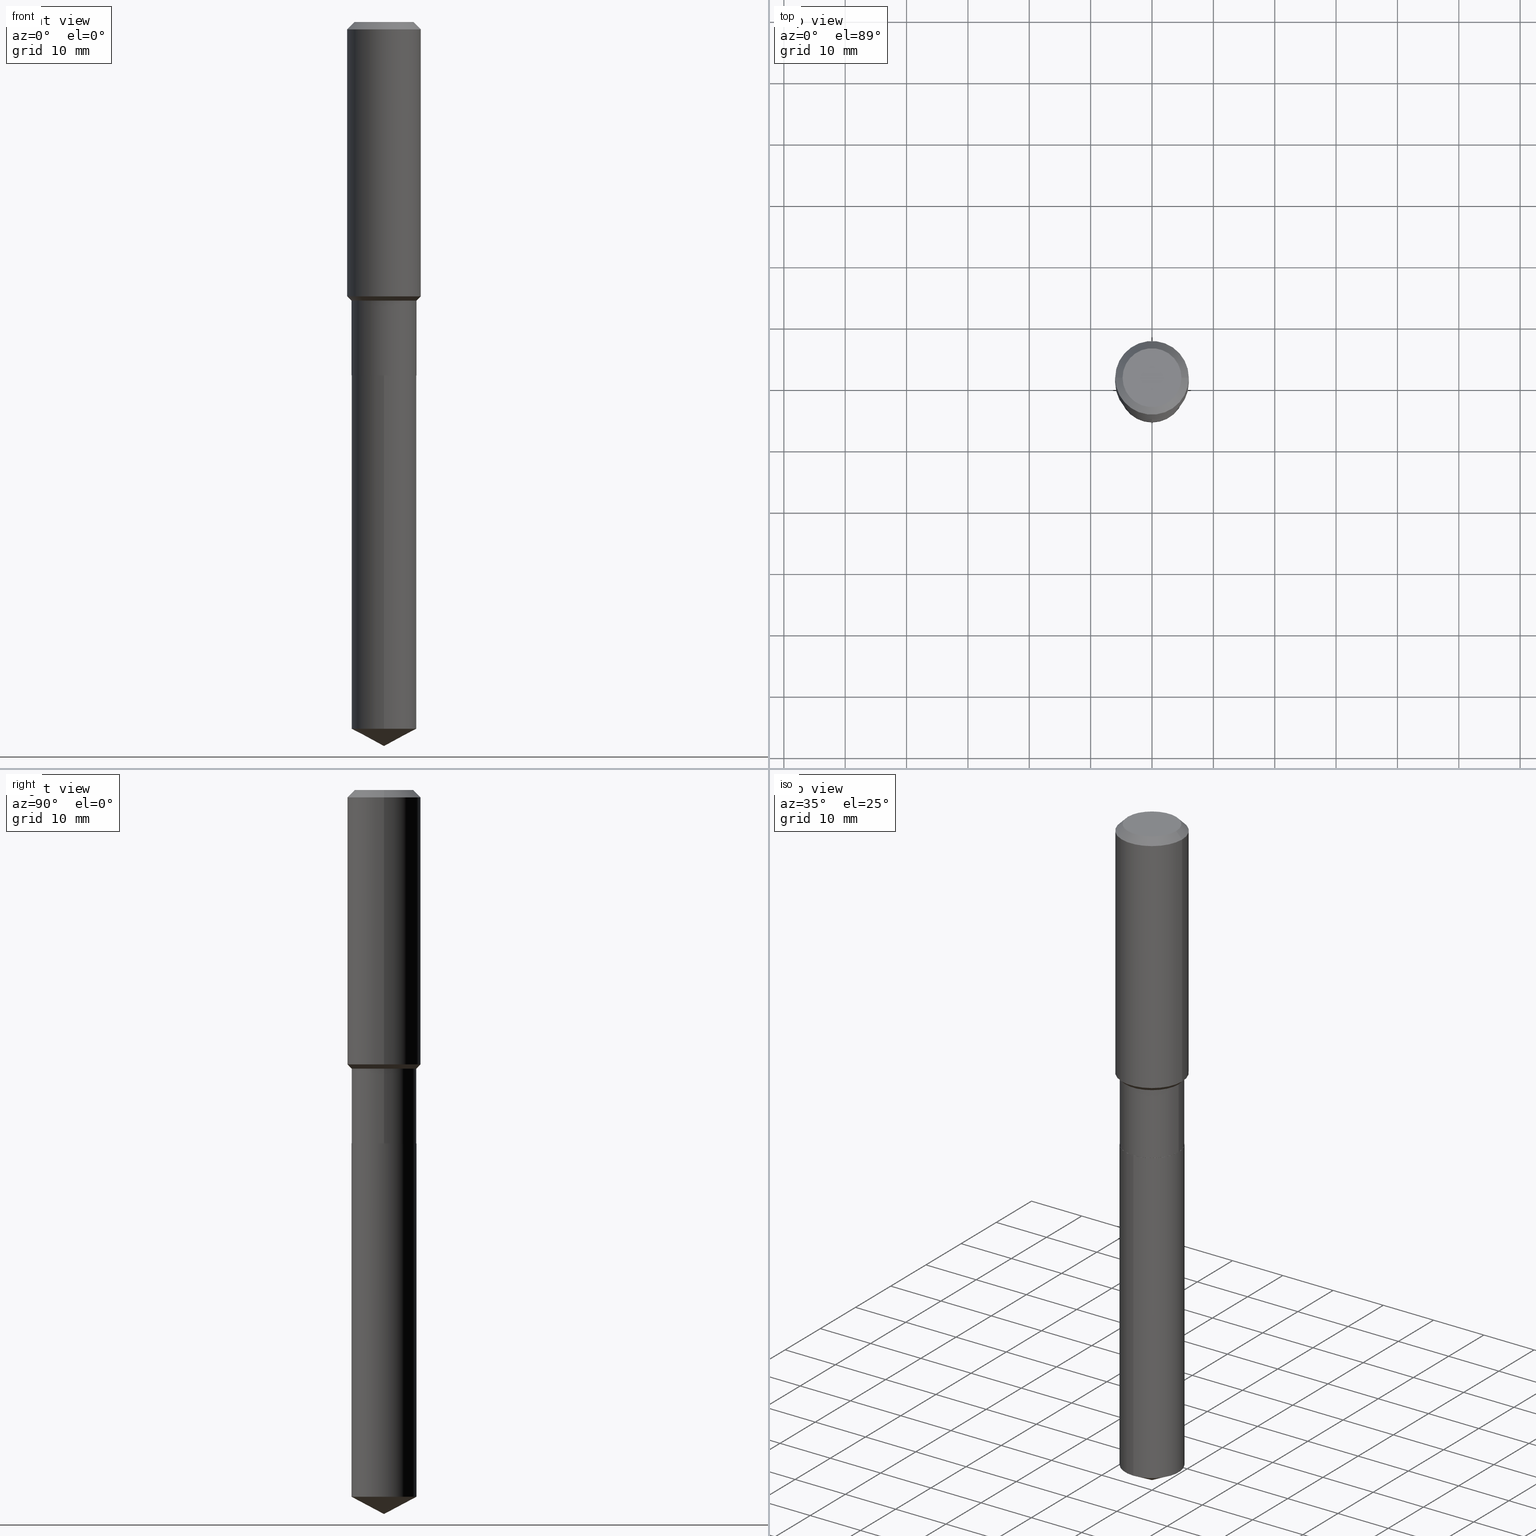
[diagram: canonical four-view strip — front | top / right | iso, engineering-drawing reading convention]
A machine part, canonical four-view strip (front | top / right | iso — engineering-drawing reading convention). The complete STEP part file that produces these views, byte-faithful:
ISO-10303-21;
HEADER;
FILE_DESCRIPTION (( 'STEP AP203' ),
    '1' );
FILE_NAME ('65076.STEP',
    '2024-04-24T20:27:56',
    ( '' ),
    ( '' ),
    'SwSTEP 2.0',
    'SolidWorks 2023',
    '' );
FILE_SCHEMA (( 'CONFIG_CONTROL_DESIGN' ));
ENDSEC;

DATA;
#1 = DIRECTION ( 'NONE',  ( -2.445468806185136597E-29, 3.491481338843145583E-15, 1.000000000000000000 ) ) ;
#2 = PLANE ( 'NONE',  #239 ) ;
#3 = DATE_AND_TIME ( #283, #67 ) ;
#4 = LOCAL_TIME ( 16, 27, 56.00000000000000000, #47 ) ;
#5 = VECTOR ( 'NONE', #154, 39.37007874015748854 ) ;
#6 = CARTESIAN_POINT ( 'NONE',  ( -0.2086499999999999744, 1.482547418163448856E-15, -1.026335806581685820E-29 ) ) ;
#7 = ORIENTED_EDGE ( 'NONE', *, *, #280, .F. ) ;
#8 = PERSON_AND_ORGANIZATION ( #27, #158 ) ;
#9 = DIRECTION ( 'NONE',  ( -2.445468806185136597E-29, 3.491481338843145583E-15, 1.000000000000000000 ) ) ;
#10 = APPROVAL_STATUS ( 'not_yet_approved' ) ;
#11 = CARTESIAN_POINT ( 'NONE',  ( 0.2086500000000000021, -9.372881654124416326E-15, -2.267199999999999438 ) ) ;
#12 = CC_DESIGN_PERSON_AND_ORGANIZATION_ASSIGNMENT ( #462, #88, ( #265 ) ) ;
#13 = DATE_AND_TIME ( #123, #134 ) ;
#14 = CYLINDRICAL_SURFACE ( 'NONE', #373, 0.2086499999999999744 ) ;
#15 = AXIS2_PLACEMENT_3D ( 'NONE', #451, #76, #109 ) ;
#16 = DATE_AND_TIME ( #460, #230 ) ;
#17 = LINE ( 'NONE', #202, #21 ) ;
#18 = CARTESIAN_POINT ( 'NONE',  ( 0.2081500000000000017, -9.371135913454994033E-15, -2.267699999999999605 ) ) ;
#19 = ADVANCED_FACE ( 'NONE', ( #80 ), #2, .F. ) ;
#20 = DIRECTION ( 'NONE',  ( -2.445496192392085927E-29, 3.491442120236068010E-15, 1.000000000000000000 ) ) ;
#21 = VECTOR ( 'NONE', #91, 39.37007874015748143 ) ;
#22 = LINE ( 'NONE', #363, #444 ) ;
#23 = LINE ( 'NONE', #331, #314 ) ;
#24 = EDGE_CURVE ( 'NONE', #313, #456, #272, .T. ) ;
#25 = CARTESIAN_POINT ( 'NONE',  ( 1.108967334134841419E-28, -1.583293691002807105E-14, -4.534758827083832600 ) ) ;
#26 = AXIS2_PLACEMENT_3D ( 'NONE', #52, #206, #424 ) ;
#27 = PERSON ( 'UNSPECIFIED', 'UNSPECIFIED', 'UNSPECIFIED', ('UNSPECIFIED'), ('UNSPECIFIED'), ('UNSPECIFIED') ) ;
#28 = CIRCLE ( 'NONE', #102, 0.2086500000000000021 ) ;
#29 = DIRECTION ( 'NONE',  ( 0.000000000000000000, 0.000000000000000000, 1.000000000000000000 ) ) ;
#30 = EDGE_CURVE ( 'NONE', #113, #210, #476, .T. ) ;
#31 = APPLICATION_PROTOCOL_DEFINITION ( 'international standard', 'config_control_design', 1994, #196 ) ;
#32 = VERTEX_POINT ( 'NONE', #277 ) ;
#33 = CARTESIAN_POINT ( 'NONE',  ( 4.304636466087385309E-29, -6.145880026698644311E-15, -1.760249999999999426 ) ) ;
#34 = ORIENTED_EDGE ( 'NONE', *, *, #227, .T. ) ;
#35 = EDGE_LOOP ( 'NONE', ( #386, #340, #480, #236 ) ) ;
#36 = AXIS2_PLACEMENT_3D ( 'NONE', #361, #170, #353 ) ;
#37 = CONICAL_SURFACE ( 'NONE', #330, 0.2361999999999999933, 0.7853981633974452814 ) ;
#38 = CARTESIAN_POINT ( 'NONE',  ( -9.427742298522546243E-47, 1.346031739168365344E-32, 3.855188123715862256E-18 ) ) ;
#39 = EDGE_CURVE ( 'NONE', #198, #344, #358, .T. ) ;
#40 = CARTESIAN_POINT ( 'NONE',  ( 5.545589611786032874E-29, -7.917632232094598886E-15, -2.267699999999999605 ) ) ;
#41 = ORIENTED_EDGE ( 'NONE', *, *, #362, .F. ) ;
#42 = EDGE_CURVE ( 'NONE', #32, #161, #117, .T. ) ;
#43 = COORDINATED_UNIVERSAL_TIME_OFFSET ( 5, 0, .BEHIND. ) ;
#44 = CYLINDRICAL_SURFACE ( 'NONE', #304, 0.2086499999999999744 ) ;
#45 = CC_DESIGN_SECURITY_CLASSIFICATION ( #265, ( #177 ) ) ;
#46 = CARTESIAN_POINT ( 'NONE',  ( -0.1889600000000000168, 1.401969416799070942E-15, 3.855188123706346622E-18 ) ) ;
#47 = COORDINATED_UNIVERSAL_TIME_OFFSET ( 5, 0, .BEHIND. ) ;
#48 = CYLINDRICAL_SURFACE ( 'NONE', #246, 0.2362000000000001043 ) ;
#49 = PRODUCT_DEFINITION ( 'UNKNOWN', '', #177, #186 ) ;
#50 = ORIENTED_EDGE ( 'NONE', *, *, #319, .T. ) ;
#51 = COORDINATED_UNIVERSAL_TIME_OFFSET ( 5, 0, .BEHIND. ) ;
#52 = CARTESIAN_POINT ( 'NONE',  ( 4.304636466087385309E-29, -6.145880026698644311E-15, -1.760249999999999426 ) ) ;
#53 = FACE_OUTER_BOUND ( 'NONE', #92, .T. ) ;
#54 = AXIS2_PLACEMENT_3D ( 'NONE', #332, #400, #473 ) ;
#55 = APPROVAL ( #207, 'UNSPECIFIED' ) ;
#56 = CARTESIAN_POINT ( 'NONE',  ( 0.2086499999999999466, -7.699065500283012440E-15, -1.787799999999999390 ) ) ;
#57 = EDGE_LOOP ( 'NONE', ( #73, #338, #286, #7 ) ) ;
#58 = CARTESIAN_POINT ( 'NONE',  ( -4.713871149261273121E-47, 6.730158695841826722E-33, 1.927594061857931128E-18 ) ) ;
#59 = CARTESIAN_POINT ( 'NONE',  ( 1.155239464041865506E-30, -1.649375784469511859E-16, -0.04724000000000028177 ) ) ;
#60 = AXIS2_PLACEMENT_3D ( 'NONE', #388, #173, #321 ) ;
#61 = VECTOR ( 'NONE', #334, 39.37007874015748143 ) ;
#62 = EDGE_LOOP ( 'NONE', ( #412, #247 ) ) ;
#63 = LINE ( 'NONE', #56, #298 ) ;
#64 = DIRECTION ( 'NONE',  ( 2.438088387897960049E-29, -3.491481338843145188E-15, -1.000000000000000000 ) ) ;
#65 =( NAMED_UNIT ( * ) PLANE_ANGLE_UNIT ( ) SI_UNIT ( $, .RADIAN. ) );
#66 = CIRCLE ( 'NONE', #36, 0.2086499999999999466 ) ;
#67 = LOCAL_TIME ( 16, 27, 56.00000000000000000, #317 ) ;
#68 = CC_DESIGN_PERSON_AND_ORGANIZATION_ASSIGNMENT ( #423, #250, ( #177 ) ) ;
#69 = DIRECTION ( 'NONE',  ( -2.445496192392085927E-29, 3.491442120236068010E-15, 1.000000000000000000 ) ) ;
#70 = VERTEX_POINT ( 'NONE', #446 ) ;
#71 = DIRECTION ( 'NONE',  ( 1.000000000000000000, -6.982962677686263555E-15, 0.000000000000000000 ) ) ;
#72 = DIRECTION ( 'NONE',  ( 6.982962677686265922E-15, 1.000000000000000000, -3.491442120236068404E-15 ) ) ;
#73 = ORIENTED_EDGE ( 'NONE', *, *, #302, .T. ) ;
#74 = EDGE_LOOP ( 'NONE', ( #233, #385, #50, #433 ) ) ;
#75 = CLOSED_SHELL ( 'NONE', ( #215, #252, #160, #213, #78, #136, #115, #93, #430, #243, #379, #443 ) ) ;
#76 = DIRECTION ( 'NONE',  ( -2.445468806185136597E-29, 3.491481338843145583E-15, 1.000000000000000000 ) ) ;
#77 = EDGE_LOOP ( 'NONE', ( #474, #107, #316, #153 ) ) ;
#78 = ADVANCED_FACE ( 'NONE', ( #244 ), #44, .T. ) ;
#79 = ORIENTED_EDGE ( 'NONE', *, *, #185, .T. ) ;
#80 = FACE_OUTER_BOUND ( 'NONE', #380, .T. ) ;
#81 = CARTESIAN_POINT ( 'NONE',  ( 1.108967334134841419E-28, -1.583293691002807105E-14, -4.534758827083832600 ) ) ;
#82 = VERTEX_POINT ( 'NONE', #411 ) ;
#83 = VECTOR ( 'NONE', #315, 39.37007874015748143 ) ;
#84 = CC_DESIGN_APPROVAL ( #99, ( #177 ) ) ;
#85 = DIRECTION ( 'NONE',  ( 1.000000000000000000, -6.982962677686266711E-15, 4.876176775795935793E-29 ) ) ;
#86 = CALENDAR_DATE ( 2024, 24, 4 ) ;
#87 = CYLINDRICAL_SURFACE ( 'NONE', #452, 0.2362000000000001043 ) ;
#88 = PERSON_AND_ORGANIZATION_ROLE ( 'classification_officer' ) ;
#89 = CARTESIAN_POINT ( 'NONE',  ( 0.2361999999999999933, -1.814313362916447440E-15, -0.04724000000000028177 ) ) ;
#90 = VERTEX_POINT ( 'NONE', #324 ) ;
#91 = DIRECTION ( 'NONE',  ( -0.7071067811865453523, 2.468850131082234184E-15, -0.7071067811865496822 ) ) ;
#92 = EDGE_LOOP ( 'NONE', ( #103, #459, #41, #288 ) ) ;
#93 = ADVANCED_FACE ( 'NONE', ( #122 ), #87, .T. ) ;
#94 = PLANE ( 'NONE',  #54 ) ;
#95 = ORIENTED_EDGE ( 'NONE', *, *, #365, .T. ) ;
#96 = ADVANCED_FACE ( 'NONE', ( #251 ), #282, .T. ) ;
#97 = DIRECTION ( 'NONE',  ( -1.000000000000000000, 6.982962677686265922E-15, -4.876176775795935793E-29 ) ) ;
#98 = CARTESIAN_POINT ( 'NONE',  ( 1.136104166099591155E-28, -1.622019265798070157E-14, -4.645699999999999719 ) ) ;
#99 = APPROVAL ( #10, 'UNSPECIFIED' ) ;
#100 = ORIENTED_EDGE ( 'NONE', *, *, #121, .T. ) ;
#101 = AXIS2_PLACEMENT_3D ( 'NONE', #214, #397, #318 ) ;
#102 = AXIS2_PLACEMENT_3D ( 'NONE', #25, #218, #139 ) ;
#103 = ORIENTED_EDGE ( 'NONE', *, *, #484, .T. ) ;
#104 = DIRECTION ( 'NONE',  ( -2.445496192392085927E-29, 3.491442120236068010E-15, 1.000000000000000000 ) ) ;
#105 = CARTESIAN_POINT ( 'NONE',  ( 1.482547418163559691E-15, 0.2086499999999842092, -4.534758827083833488 ) ) ;
#106 =( LENGTH_UNIT ( ) NAMED_UNIT ( * ) SI_UNIT ( $, .METRE. ) );
#107 = ORIENTED_EDGE ( 'NONE', *, *, #201, .T. ) ;
#108 = CIRCLE ( 'NONE', #15, 0.2081500000000000017 ) ;
#109 = DIRECTION ( 'NONE',  ( 1.000000000000000000, -6.982962677686263555E-15, 0.000000000000000000 ) ) ;
#110 = DIRECTION ( 'NONE',  ( -2.445468806185136597E-29, 3.491481338843145583E-15, 1.000000000000000000 ) ) ;
#111 =( CONVERSION_BASED_UNIT ( 'INCH', #489 ) LENGTH_UNIT ( ) NAMED_UNIT ( #399 ) );
#112 = DIRECTION ( 'NONE',  ( -2.445468806185136597E-29, 3.491481338843145583E-15, 1.000000000000000000 ) ) ;
#113 = VERTEX_POINT ( 'NONE', #46 ) ;
#114 = PERSON_AND_ORGANIZATION ( #27, #158 ) ;
#115 = ADVANCED_FACE ( 'NONE', ( #391 ), #157, .T. ) ;
#116 = ORIENTED_EDGE ( 'NONE', *, *, #365, .F. ) ;
#117 = CIRCLE ( 'NONE', #291, 0.2361999999999999933 ) ;
#118 = VECTOR ( 'NONE', #377, 39.37007874015748143 ) ;
#119 = LINE ( 'NONE', #311, #118 ) ;
#120 = DIRECTION ( 'NONE',  ( 2.445496192392085367E-29, -3.491442120236068404E-15, -1.000000000000000000 ) ) ;
#121 = EDGE_CURVE ( 'NONE', #113, #32, #17, .T. ) ;
#122 = FACE_OUTER_BOUND ( 'NONE', #74, .T. ) ;
#123 = CALENDAR_DATE ( 2024, 24, 4 ) ;
#124 = DIRECTION ( 'NONE',  ( -2.445468806185136597E-29, 3.491481338843145583E-15, 1.000000000000000000 ) ) ;
#125 = PERSON_AND_ORGANIZATION_ROLE ( 'design_supplier' ) ;
#126 = VECTOR ( 'NONE', #467, 39.37007874015748143 ) ;
#127 = DIRECTION ( 'NONE',  ( -2.445468806185136597E-29, 3.491481338843145583E-15, 1.000000000000000000 ) ) ;
#128 = DIRECTION ( 'NONE',  ( -2.445468806185136597E-29, 3.491481338843145583E-15, 1.000000000000000000 ) ) ;
#129 = DIRECTION ( 'NONE',  ( 1.000000000000000000, -6.982962677686266711E-15, 4.876176775795935793E-29 ) ) ;
#130 = ORIENTED_EDGE ( 'NONE', *, *, #121, .F. ) ;
#131 = MANIFOLD_SOLID_BREP ( 'Body-Move/Copy2[2]', #75 ) ;
#132 = CIRCLE ( 'NONE', #442, 0.1889600000000000168 ) ;
#133 = CARTESIAN_POINT ( 'NONE',  ( 4.372009131697785890E-29, -6.242070337583773496E-15, -1.787799999999999390 ) ) ;
#134 = LOCAL_TIME ( 16, 27, 56.00000000000000000, #51 ) ;
#135 = MANIFOLD_SOLID_BREP ( 'Body-Move/Copy2[1]', #229 ) ;
#136 = ADVANCED_FACE ( 'NONE', ( #464 ), #14, .T. ) ;
#137 = CARTESIAN_POINT ( 'NONE',  ( 0.2361999999999999933, -1.785387205520586782E-15, -0.04724000000000028177 ) ) ;
#138 = EDGE_CURVE ( 'NONE', #249, #32, #245, .T. ) ;
#139 = DIRECTION ( 'NONE',  ( -6.982962677686265922E-15, -1.000000000000000000, 2.618593811324479633E-15 ) ) ;
#140 = CARTESIAN_POINT ( 'NONE',  ( 5.545589611786032874E-29, -7.917632232094598886E-15, -2.267699999999999605 ) ) ;
#141 = CIRCLE ( 'NONE', #359, 0.2086499999999999466 ) ;
#142 = CARTESIAN_POINT ( 'NONE',  ( 0.2081500000000000017, -9.371135913454994033E-15, -2.267699999999999605 ) ) ;
#143 = EDGE_CURVE ( 'NONE', #249, #90, #257, .T. ) ;
#144 =( NAMED_UNIT ( * ) SI_UNIT ( $, .STERADIAN. ) SOLID_ANGLE_UNIT ( ) );
#145 = VERTEX_POINT ( 'NONE', #348 ) ;
#146 = DIRECTION ( 'NONE',  ( 1.000000000000000000, -6.982962677686265922E-15, 0.000000000000000000 ) ) ;
#147 = CARTESIAN_POINT ( 'NONE',  ( 5.544366877382941194E-29, -7.915886491425178171E-15, -2.267199999999999438 ) ) ;
#148 = VECTOR ( 'NONE', #294, 39.37007874015748143 ) ;
#149 = FACE_OUTER_BOUND ( 'NONE', #35, .T. ) ;
#150 = ORIENTED_EDGE ( 'NONE', *, *, #30, .T. ) ;
#151 = ORIENTED_EDGE ( 'NONE', *, *, #333, .T. ) ;
#152 = PRODUCT_RELATED_PRODUCT_CATEGORY ( 'detail', '', ( #228 ) ) ;
#153 = ORIENTED_EDGE ( 'NONE', *, *, #387, .F. ) ;
#154 = DIRECTION ( 'NONE',  ( 6.273719981627764499E-15, 0.8829475928589295419, 0.4694715627858856433 ) ) ;
#155 = EDGE_LOOP ( 'NONE', ( #150, #79 ) ) ;
#156 = ORIENTED_EDGE ( 'NONE', *, *, #438, .T. ) ;
#157 = CONICAL_SURFACE ( 'NONE', #389, 0.2086499999999999466, 0.7853981633974513876 ) ;
#158 = ORGANIZATION ( 'UNSPECIFIED', 'UNSPECIFIED', '' ) ;
#159 = DIRECTION ( 'NONE',  ( -2.445468806185136597E-29, 3.491481338843145583E-15, 1.000000000000000000 ) ) ;
#160 = ADVANCED_FACE ( 'NONE', ( #53 ), #48, .T. ) ;
#161 = VERTEX_POINT ( 'NONE', #89 ) ;
#162 = CALENDAR_DATE ( 2024, 24, 4 ) ;
#163 = DIRECTION ( 'NONE',  ( -2.445496192392085927E-29, 3.491442120236068010E-15, 1.000000000000000000 ) ) ;
#164 = DATE_AND_TIME ( #162, #305 ) ;
#165 = CARTESIAN_POINT ( 'NONE',  ( 0.000000000000000000, 0.000000000000000000, 0.000000000000000000 ) ) ;
#166 = ORIENTED_EDGE ( 'NONE', *, *, #235, .F. ) ;
#167 = AXIS2_PLACEMENT_3D ( 'NONE', #81, #163, #281 ) ;
#168 = SHAPE_DEFINITION_REPRESENTATION ( #262, #209 ) ;
#169 = AXIS2_PLACEMENT_3D ( 'NONE', #174, #327, #293 ) ;
#170 = DIRECTION ( 'NONE',  ( -2.445468806185136597E-29, 3.491481338843145583E-15, 1.000000000000000000 ) ) ;
#171 = APPLICATION_CONTEXT ( 'configuration controlled 3d designs of mechanical parts and assemblies' ) ;
#172 = EDGE_CURVE ( 'NONE', #275, #82, #66, .T. ) ;
#173 = DIRECTION ( 'NONE',  ( -2.445468806185136597E-29, 3.491481338843145583E-15, 1.000000000000000000 ) ) ;
#174 = CARTESIAN_POINT ( 'NONE',  ( 1.155239464041865506E-30, -1.649375784469511859E-16, -0.04724000000000028177 ) ) ;
#175 = VECTOR ( 'NONE', #465, 39.37007874015748143 ) ;
#176 = DIRECTION ( 'NONE',  ( -2.445468806185136597E-29, 3.491481338843145583E-15, 1.000000000000000000 ) ) ;
#177 = PRODUCT_DEFINITION_FORMATION_WITH_SPECIFIED_SOURCE ( 'ANY', '', #228, .NOT_KNOWN. ) ;
#178 = CARTESIAN_POINT ( 'NONE',  ( -1.456995162699128700E-15, -0.2086500000000158506, -4.534758827083831711 ) ) ;
#179 = CARTESIAN_POINT ( 'NONE',  ( -0.2086499999999999466, -5.596430996341026386E-15, -1.787799999999999390 ) ) ;
#180 = ORIENTED_EDGE ( 'NONE', *, *, #413, .T. ) ;
#181 = FACE_OUTER_BOUND ( 'NONE', #472, .T. ) ;
#182 = ORIENTED_EDGE ( 'NONE', *, *, #403, .F. ) ;
#183 = CONICAL_SURFACE ( 'NONE', #258, 0.2081500000000000017, 0.7853981633975507526 ) ;
#184 = MECHANICAL_CONTEXT ( 'NONE', #171, 'mechanical' ) ;
#185 = EDGE_CURVE ( 'NONE', #210, #113, #132, .T. ) ;
#186 = DESIGN_CONTEXT ( 'detailed design', #196, 'design' ) ;
#187 = DIRECTION ( 'NONE',  ( 1.000000000000000000, -6.982962677686266711E-15, 0.000000000000000000 ) ) ;
#188 = ORIENTED_EDGE ( 'NONE', *, *, #362, .T. ) ;
#189 = CARTESIAN_POINT ( 'NONE',  ( -1.456995162699183723E-15, -0.2086500000000079402, -2.267699999999998717 ) ) ;
#190 = AXIS2_PLACEMENT_3D ( 'NONE', #256, #127, #289 ) ;
#191 = ORIENTED_EDGE ( 'NONE', *, *, #172, .F. ) ;
#192 = CIRCLE ( 'NONE', #477, 0.2362000000000002153 ) ;
#193 = EDGE_CURVE ( 'NONE', #70, #342, #404, .T. ) ;
#194 = EDGE_LOOP ( 'NONE', ( #401, #384, #487 ) ) ;
#195 = DIRECTION ( 'NONE',  ( -2.445468806185136597E-29, 3.491481338843145583E-15, 1.000000000000000000 ) ) ;
#196 = APPLICATION_CONTEXT ( 'configuration controlled 3d designs of mechanical parts and assemblies' ) ;
#197 = CYLINDRICAL_SURFACE ( 'NONE', #436, 0.2086500000000000021 ) ;
#198 = VERTEX_POINT ( 'NONE', #11 ) ;
#199 = ORIENTED_EDGE ( 'NONE', *, *, #42, .T. ) ;
#200 = PERSON_AND_ORGANIZATION ( #27, #158 ) ;
#201 = EDGE_CURVE ( 'NONE', #344, #275, #259, .T. ) ;
#202 = CARTESIAN_POINT ( 'NONE',  ( -0.2361999999999999933, 1.484438206022545019E-15, -0.04724000000000028177 ) ) ;
#203 = AXIS2_PLACEMENT_3D ( 'NONE', #38, #195, #449 ) ;
#204 = AXIS2_PLACEMENT_3D ( 'NONE', #260, #20, #221 ) ;
#205 = PERSON_AND_ORGANIZATION_ROLE ( 'creator' ) ;
#206 = DIRECTION ( 'NONE',  ( -2.445468806185136597E-29, 3.491481338843145583E-15, 1.000000000000000000 ) ) ;
#207 = APPROVAL_STATUS ( 'not_yet_approved' ) ;
#208 = CARTESIAN_POINT ( 'NONE',  ( 4.372009131697785890E-29, -6.242070337583773496E-15, -1.787799999999999390 ) ) ;
#209 = ADVANCED_BREP_SHAPE_REPRESENTATION ( '65076', ( #135, #131, #485 ), #390 ) ;
#210 = VERTEX_POINT ( 'NONE', #425 ) ;
#211 = DATE_TIME_ROLE ( 'creation_date' ) ;
#212 = DIRECTION ( 'NONE',  ( -2.445468806185136597E-29, 3.491481338843145583E-15, 1.000000000000000000 ) ) ;
#213 = ADVANCED_FACE ( 'NONE', ( #420 ), #220, .T. ) ;
#214 = CARTESIAN_POINT ( 'NONE',  ( -8.491839809593731106E-28, 1.212380695963803937E-13, 34.72437874015748349 ) ) ;
#215 = ADVANCED_FACE ( 'NONE', ( #461 ), #263, .T. ) ;
#216 = DIRECTION ( 'NONE',  ( -0.7071067811866199593, 7.493145998870616062E-15, 0.7071067811864750752 ) ) ;
#217 = EDGE_LOOP ( 'NONE', ( #343, #351, #224, #372 ) ) ;
#218 = DIRECTION ( 'NONE',  ( -2.445496192392085927E-29, 3.491442120236068010E-15, 1.000000000000000000 ) ) ;
#219 = CC_DESIGN_DATE_AND_TIME_ASSIGNMENT ( #352, #457, ( #265 ) ) ;
#220 = CONICAL_SURFACE ( 'NONE', #60, 0.2086499999999999466, 0.7853981633974513876 ) ;
#221 = DIRECTION ( 'NONE',  ( -6.982962677686265922E-15, -1.000000000000000000, 3.541896320645560869E-15 ) ) ;
#222 = CONICAL_SURFACE ( 'NONE', #240, 0.2361999999999999933, 0.7853981633974452814 ) ;
#223 = LINE ( 'NONE', #264, #453 ) ;
#224 = ORIENTED_EDGE ( 'NONE', *, *, #280, .T. ) ;
#225 = ORIENTED_EDGE ( 'NONE', *, *, #24, .T. ) ;
#226 = FACE_OUTER_BOUND ( 'NONE', #434, .T. ) ;
#227 = EDGE_CURVE ( 'NONE', #145, #456, #341, .T. ) ;
#228 = PRODUCT ( '65076', '65076', '', ( #184 ) ) ;
#229 = CLOSED_SHELL ( 'NONE', ( #284, #96, #255, #427, #19 ) ) ;
#230 = LOCAL_TIME ( 16, 27, 56.00000000000000000, #325 ) ;
#231 = APPROVAL_PERSON_ORGANIZATION ( #200, #99, #320 ) ;
#232 = CARTESIAN_POINT ( 'NONE',  ( 5.544366877382941194E-29, -7.915886491425178171E-15, -2.267199999999999438 ) ) ;
#233 = ORIENTED_EDGE ( 'NONE', *, *, #138, .F. ) ;
#234 = APPLICATION_PROTOCOL_DEFINITION ( 'international standard', 'config_control_design', 1994, #171 ) ;
#235 = EDGE_CURVE ( 'NONE', #347, #313, #382, .T. ) ;
#236 = ORIENTED_EDGE ( 'NONE', *, *, #438, .F. ) ;
#237 = DIRECTION ( 'NONE',  ( -1.000000000000000000, 6.982962677686266711E-15, 0.000000000000000000 ) ) ;
#238 = DIRECTION ( 'NONE',  ( 1.000000000000000000, -6.982962677686265922E-15, 0.000000000000000000 ) ) ;
#239 = AXIS2_PLACEMENT_3D ( 'NONE', #454, #120, #72 ) ;
#240 = AXIS2_PLACEMENT_3D ( 'NONE', #337, #408, #237 ) ;
#241 = FACE_OUTER_BOUND ( 'NONE', #426, .T. ) ;
#242 = EDGE_LOOP ( 'NONE', ( #414, #369, #310, #396 ) ) ;
#243 = ADVANCED_FACE ( 'NONE', ( #407 ), #266, .F. ) ;
#244 = FACE_OUTER_BOUND ( 'NONE', #77, .T. ) ;
#245 = LINE ( 'NONE', #285, #175 ) ;
#246 = AXIS2_PLACEMENT_3D ( 'NONE', #355, #212, #129 ) ;
#247 = ORIENTED_EDGE ( 'NONE', *, *, #193, .F. ) ;
#248 = CIRCLE ( 'NONE', #422, 0.2086500000000000021 ) ;
#249 = VERTEX_POINT ( 'NONE', #437 ) ;
#250 = PERSON_AND_ORGANIZATION_ROLE ( 'creator' ) ;
#251 = FACE_OUTER_BOUND ( 'NONE', #194, .T. ) ;
#252 = ADVANCED_FACE ( 'NONE', ( #226 ), #37, .T. ) ;
#253 = APPROVAL_ROLE ( '' ) ;
#254 = DIRECTION ( 'NONE',  ( -2.445468806185136597E-29, 3.491481338843145583E-15, 1.000000000000000000 ) ) ;
#255 = ADVANCED_FACE ( 'NONE', ( #364 ), #269, .T. ) ;
#256 = CARTESIAN_POINT ( 'NONE',  ( 5.545589611786032874E-29, -7.917632232094598886E-15, -2.267699999999999605 ) ) ;
#257 = CIRCLE ( 'NONE', #26, 0.2362000000000002153 ) ;
#258 = AXIS2_PLACEMENT_3D ( 'NONE', #381, #410, #71 ) ;
#259 = LINE ( 'NONE', #6, #83 ) ;
#260 = CARTESIAN_POINT ( 'NONE',  ( -8.491839809593731106E-28, 1.212380695963803937E-13, 34.72437874015748349 ) ) ;
#261 = LINE ( 'NONE', #18, #148 ) ;
#262 = PRODUCT_DEFINITION_SHAPE ( 'NONE', 'NONE',  #49 ) ;
#263 = CONICAL_SURFACE ( 'NONE', #190, 0.2081500000000000017, 0.7853981633975507526 ) ;
#264 = CARTESIAN_POINT ( 'NONE',  ( -0.2086499999999999466, -4.759522919420324443E-15, -1.787799999999999390 ) ) ;
#265 = SECURITY_CLASSIFICATION ( '', '', #354 ) ;
#266 = PLANE ( 'NONE',  #416 ) ;
#267 = DIRECTION ( 'NONE',  ( -1.000000000000000000, 6.982962677686266711E-15, 0.000000000000000000 ) ) ;
#268 = DIRECTION ( 'NONE',  ( -6.982962677686265922E-15, -1.000000000000000000, 3.927890716986719253E-15 ) ) ;
#269 = CONICAL_SURFACE ( 'NONE', #204, 74.04434902938353957, 1.082104136236486491 ) ;
#270 = ORIENTED_EDGE ( 'NONE', *, *, #387, .T. ) ;
#271 = EDGE_CURVE ( 'NONE', #313, #347, #28, .T. ) ;
#272 = LINE ( 'NONE', #189, #329 ) ;
#273 = ORIENTED_EDGE ( 'NONE', *, *, #185, .F. ) ;
#274 = CARTESIAN_POINT ( 'NONE',  ( 5.545589611786032874E-29, -7.917632232094598886E-15, -2.267699999999999605 ) ) ;
#275 = VERTEX_POINT ( 'NONE', #179 ) ;
#276 = APPROVAL_DATE_TIME ( #164, #447 ) ;
#277 = CARTESIAN_POINT ( 'NONE',  ( -0.2361999999999999933, -1.477106860707440035E-15, -0.04724000000000028177 ) ) ;
#278 = CC_DESIGN_PERSON_AND_ORGANIZATION_ASSIGNMENT ( #8, #205, ( #49 ) ) ;
#279 = DIRECTION ( 'NONE',  ( -2.445496192392085927E-29, 3.491442120236068010E-15, 1.000000000000000000 ) ) ;
#280 = EDGE_CURVE ( 'NONE', #82, #90, #63, .T. ) ;
#281 = DIRECTION ( 'NONE',  ( -6.982962677686265922E-15, -1.000000000000000000, 2.618593811324479633E-15 ) ) ;
#282 = CONICAL_SURFACE ( 'NONE', #101, 74.04434902938353957, 1.082104136236486491 ) ;
#283 = CALENDAR_DATE ( 2024, 24, 4 ) ;
#284 = ADVANCED_FACE ( 'NONE', ( #181 ), #335, .T. ) ;
#285 = CARTESIAN_POINT ( 'NONE',  ( -0.2362000000000001043, 1.678301941865357380E-15, -1.161852468318209317E-29 ) ) ;
#286 = ORIENTED_EDGE ( 'NONE', *, *, #484, .F. ) ;
#287 = DIRECTION ( 'NONE',  ( 1.000000000000000000, -6.982962677686263555E-15, 0.000000000000000000 ) ) ;
#288 = ORIENTED_EDGE ( 'NONE', *, *, #319, .F. ) ;
#289 = DIRECTION ( 'NONE',  ( 1.000000000000000000, -6.982962677686263555E-15, 0.000000000000000000 ) ) ;
#290 = ORIENTED_EDGE ( 'NONE', *, *, #333, .F. ) ;
#291 = AXIS2_PLACEMENT_3D ( 'NONE', #450, #112, #490 ) ;
#292 = CIRCLE ( 'NONE', #336, 0.2086500000000000021 ) ;
#293 = DIRECTION ( 'NONE',  ( 1.000000000000000000, -6.982962677686266711E-15, 0.000000000000000000 ) ) ;
#294 = DIRECTION ( 'NONE',  ( 0.7071067811866199593, -2.468850131083015945E-15, 0.7071067811864750752 ) ) ;
#295 = LINE ( 'NONE', #368, #61 ) ;
#296 = AXIS2_PLACEMENT_3D ( 'NONE', #147, #419, #238 ) ;
#297 = CARTESIAN_POINT ( 'NONE',  ( -0.2086500000000000021, -5.596430996341025597E-15, -2.267199999999999438 ) ) ;
#298 = VECTOR ( 'NONE', #300, 39.37007874015748143 ) ;
#299 = CC_DESIGN_PERSON_AND_ORGANIZATION_ASSIGNMENT ( #114, #440, ( #228 ) ) ;
#300 = DIRECTION ( 'NONE',  ( 0.7071067811865496822, -2.468850131082279149E-15, 0.7071067811865453523 ) ) ;
#301 = ORIENTED_EDGE ( 'NONE', *, *, #227, .F. ) ;
#302 = EDGE_CURVE ( 'NONE', #82, #275, #141, .T. ) ;
#303 = APPROVAL_ROLE ( '' ) ;
#304 = AXIS2_PLACEMENT_3D ( 'NONE', #375, #110, #441 ) ;
#305 = LOCAL_TIME ( 16, 27, 56.00000000000000000, #43 ) ;
#306 = ORIENTED_EDGE ( 'NONE', *, *, #271, .T. ) ;
#307 = CARTESIAN_POINT ( 'NONE',  ( 1.136104275014822165E-28, -1.622019265798070157E-14, -4.645699999999999719 ) ) ;
#308 = EDGE_LOOP ( 'NONE', ( #378, #180, #166 ) ) ;
#309 = CARTESIAN_POINT ( 'NONE',  ( 0.000000000000000000, 0.000000000000000000, 0.000000000000000000 ) ) ;
#310 = ORIENTED_EDGE ( 'NONE', *, *, #39, .F. ) ;
#311 = CARTESIAN_POINT ( 'NONE',  ( 1.136091745359291263E-28, -1.622037053005124168E-14, -4.645699999999999719 ) ) ;
#312 = EDGE_CURVE ( 'NONE', #342, #198, #261, .T. ) ;
#313 = VERTEX_POINT ( 'NONE', #178 ) ;
#314 = VECTOR ( 'NONE', #475, 39.37007874015748143 ) ;
#315 = DIRECTION ( 'NONE',  ( -2.445468806185136877E-29, 3.491481338843145188E-15, 1.000000000000000000 ) ) ;
#316 = ORIENTED_EDGE ( 'NONE', *, *, #302, .F. ) ;
#317 = COORDINATED_UNIVERSAL_TIME_OFFSET ( 5, 0, .BEHIND. ) ;
#318 = DIRECTION ( 'NONE',  ( -6.982962677686265922E-15, -1.000000000000000000, 3.541896320645560869E-15 ) ) ;
#319 = EDGE_CURVE ( 'NONE', #90, #161, #367, .T. ) ;
#320 = APPROVAL_ROLE ( '' ) ;
#321 = DIRECTION ( 'NONE',  ( 1.000000000000000000, -6.982962677686267499E-15, 0.000000000000000000 ) ) ;
#322 = AXIS2_PLACEMENT_3D ( 'NONE', #428, #279, #455 ) ;
#323 = AXIS2_PLACEMENT_3D ( 'NONE', #140, #104, #478 ) ;
#324 = CARTESIAN_POINT ( 'NONE',  ( 0.2362000000000002153, -7.795255811168141625E-15, -1.760249999999999426 ) ) ;
#325 = COORDINATED_UNIVERSAL_TIME_OFFSET ( 5, 0, .BEHIND. ) ;
#326 = CARTESIAN_POINT ( 'NONE',  ( 5.545589611786032874E-29, -7.917632232094598886E-15, -2.267699999999999605 ) ) ;
#327 = DIRECTION ( 'NONE',  ( -2.445468806185136597E-29, 3.491481338843145583E-15, 1.000000000000000000 ) ) ;
#328 = EDGE_LOOP ( 'NONE', ( #376, #156, #270, #191 ) ) ;
#329 = VECTOR ( 'NONE', #383, 39.37007874015748143 ) ;
#330 = AXIS2_PLACEMENT_3D ( 'NONE', #59, #371, #267 ) ;
#331 = CARTESIAN_POINT ( 'NONE',  ( 1.482547418163504470E-15, 0.2086499999999920918, -2.267700000000000049 ) ) ;
#332 = CARTESIAN_POINT ( 'NONE',  ( 5.545589611786032874E-29, -7.917632232094598886E-15, -2.267699999999999605 ) ) ;
#333 = EDGE_CURVE ( 'NONE', #347, #145, #23, .T. ) ;
#334 = DIRECTION ( 'NONE',  ( -2.445468806185136877E-29, 3.491481338843145188E-15, 1.000000000000000000 ) ) ;
#335 = CYLINDRICAL_SURFACE ( 'NONE', #323, 0.2086500000000000021 ) ;
#336 = AXIS2_PLACEMENT_3D ( 'NONE', #232, #346, #146 ) ;
#337 = CARTESIAN_POINT ( 'NONE',  ( 1.155239464041865506E-30, -1.649375784469511859E-16, -0.04724000000000028177 ) ) ;
#338 = ORIENTED_EDGE ( 'NONE', *, *, #349, .T. ) ;
#339 = PERSON_AND_ORGANIZATION ( #27, #158 ) ;
#340 = ORIENTED_EDGE ( 'NONE', *, *, #193, .T. ) ;
#341 = CIRCLE ( 'NONE', #322, 0.2086500000000000021 ) ;
#342 = VERTEX_POINT ( 'NONE', #142 ) ;
#343 = ORIENTED_EDGE ( 'NONE', *, *, #349, .F. ) ;
#344 = VERTEX_POINT ( 'NONE', #297 ) ;
#345 = VERTEX_POINT ( 'NONE', #98 ) ;
#346 = DIRECTION ( 'NONE',  ( -2.445468806185136597E-29, 3.491481338843145583E-15, 1.000000000000000000 ) ) ;
#347 = VERTEX_POINT ( 'NONE', #105 ) ;
#348 = CARTESIAN_POINT ( 'NONE',  ( 1.482547418163559888E-15, 0.2086499999999920363, -2.267700000000000049 ) ) ;
#349 = EDGE_CURVE ( 'NONE', #275, #249, #223, .T. ) ;
#350 = APPROVAL_PERSON_ORGANIZATION ( #356, #55, #253 ) ;
#351 = ORIENTED_EDGE ( 'NONE', *, *, #172, .T. ) ;
#352 = DATE_AND_TIME ( #86, #4 ) ;
#353 = DIRECTION ( 'NONE',  ( 1.000000000000000000, -6.982962677686267499E-15, 0.000000000000000000 ) ) ;
#354 = SECURITY_CLASSIFICATION_LEVEL ( 'unclassified' ) ;
#355 = CARTESIAN_POINT ( 'NONE',  ( 0.000000000000000000, 0.000000000000000000, 0.000000000000000000 ) ) ;
#356 = PERSON_AND_ORGANIZATION ( #27, #158 ) ;
#357 = DIRECTION ( 'NONE',  ( 1.000000000000000000, -6.982962677686266711E-15, 4.876185090822587894E-29 ) ) ;
#358 = CIRCLE ( 'NONE', #296, 0.2086500000000000021 ) ;
#359 = AXIS2_PLACEMENT_3D ( 'NONE', #133, #176, #439 ) ;
#360 = EDGE_CURVE ( 'NONE', #70, #344, #22, .T. ) ;
#361 = CARTESIAN_POINT ( 'NONE',  ( 4.372009131697785890E-29, -6.242070337583773496E-15, -1.787799999999999390 ) ) ;
#362 = EDGE_CURVE ( 'NONE', #161, #32, #469, .T. ) ;
#363 = CARTESIAN_POINT ( 'NONE',  ( -0.2081500000000000017, -6.438637527609950731E-15, -2.267699999999999605 ) ) ;
#364 = FACE_OUTER_BOUND ( 'NONE', #308, .T. ) ;
#365 = EDGE_CURVE ( 'NONE', #210, #161, #471, .T. ) ;
#366 = CC_DESIGN_APPROVAL ( #447, ( #49 ) ) ;
#367 = LINE ( 'NONE', #432, #126 ) ;
#368 = CARTESIAN_POINT ( 'NONE',  ( 0.2086499999999999744, -1.456995162699239338E-15, 1.017414284269821845E-29 ) ) ;
#369 = ORIENTED_EDGE ( 'NONE', *, *, #360, .T. ) ;
#370 = UNCERTAINTY_MEASURE_WITH_UNIT (LENGTH_MEASURE( 1.000000000000000082E-05 ), #111, 'distance_accuracy_value', 'NONE');
#371 = DIRECTION ( 'NONE',  ( 2.445468806185136597E-29, -3.491481338843145583E-15, -1.000000000000000000 ) ) ;
#372 = ORIENTED_EDGE ( 'NONE', *, *, #143, .F. ) ;
#373 = AXIS2_PLACEMENT_3D ( 'NONE', #165, #128, #85 ) ;
#374 = FACE_OUTER_BOUND ( 'NONE', #417, .T. ) ;
#375 = CARTESIAN_POINT ( 'NONE',  ( 0.000000000000000000, 0.000000000000000000, 0.000000000000000000 ) ) ;
#376 = ORIENTED_EDGE ( 'NONE', *, *, #201, .F. ) ;
#377 = DIRECTION ( 'NONE',  ( -6.165590087286835240E-15, -0.8829475928589263223, 0.4694715627858919715 ) ) ;
#378 = ORIENTED_EDGE ( 'NONE', *, *, #398, .F. ) ;
#379 = ADVANCED_FACE ( 'NONE', ( #435 ), #94, .F. ) ;
#380 = EDGE_LOOP ( 'NONE', ( #481, #34 ) ) ;
#381 = CARTESIAN_POINT ( 'NONE',  ( 5.545589611786032874E-29, -7.917632232094598886E-15, -2.267699999999999605 ) ) ;
#382 = CIRCLE ( 'NONE', #167, 0.2086500000000000021 ) ;
#383 = DIRECTION ( 'NONE',  ( -2.445496192392085647E-29, 3.491442120236068404E-15, 1.000000000000000000 ) ) ;
#384 = ORIENTED_EDGE ( 'NONE', *, *, #398, .T. ) ;
#385 = ORIENTED_EDGE ( 'NONE', *, *, #143, .T. ) ;
#386 = ORIENTED_EDGE ( 'NONE', *, *, #360, .F. ) ;
#387 = EDGE_CURVE ( 'NONE', #198, #82, #295, .T. ) ;
#388 = CARTESIAN_POINT ( 'NONE',  ( 4.372009131697785890E-29, -6.242070337583773496E-15, -1.787799999999999390 ) ) ;
#389 = AXIS2_PLACEMENT_3D ( 'NONE', #208, #159, #421 ) ;
#390 =( GEOMETRIC_REPRESENTATION_CONTEXT ( 3 ) GLOBAL_UNCERTAINTY_ASSIGNED_CONTEXT ( ( #370 ) ) GLOBAL_UNIT_ASSIGNED_CONTEXT ( ( #111, #65, #144 ) ) REPRESENTATION_CONTEXT ( 'NONE', 'WORKASPACE' ) );
#391 = FACE_OUTER_BOUND ( 'NONE', #217, .T. ) ;
#392 = APPROVAL_DATE_TIME ( #16, #99 ) ;
#393 = DIRECTION ( 'NONE',  ( 1.000000000000000000, -6.982962677686266711E-15, 4.876176775795935793E-29 ) ) ;
#394 = PERSON_AND_ORGANIZATION ( #27, #158 ) ;
#395 = CARTESIAN_POINT ( 'NONE',  ( 0.000000000000000000, 0.000000000000000000, 0.000000000000000000 ) ) ;
#396 = ORIENTED_EDGE ( 'NONE', *, *, #312, .F. ) ;
#397 = DIRECTION ( 'NONE',  ( -2.445496192392085927E-29, 3.491442120236068010E-15, 1.000000000000000000 ) ) ;
#398 = EDGE_CURVE ( 'NONE', #345, #347, #406, .T. ) ;
#399 = DIMENSIONAL_EXPONENTS ( 1.000000000000000000, 0.000000000000000000, 0.000000000000000000, 0.000000000000000000, 0.000000000000000000, 0.000000000000000000, 0.000000000000000000 ) ;
#400 = DIRECTION ( 'NONE',  ( -2.438088387897960049E-29, 3.491481338843145188E-15, 1.000000000000000000 ) ) ;
#401 = ORIENTED_EDGE ( 'NONE', *, *, #413, .F. ) ;
#402 = DIRECTION ( 'NONE',  ( -0.7071067811865496822, 7.493145998870362049E-15, 0.7071067811865453523 ) ) ;
#403 = EDGE_CURVE ( 'NONE', #456, #145, #248, .T. ) ;
#404 = CIRCLE ( 'NONE', #468, 0.2081500000000000017 ) ;
#405 = VECTOR ( 'NONE', #431, 39.37007874015748143 ) ;
#406 = LINE ( 'NONE', #307, #5 ) ;
#407 = FACE_OUTER_BOUND ( 'NONE', #155, .T. ) ;
#408 = DIRECTION ( 'NONE',  ( 2.445468806185136597E-29, -3.491481338843145583E-15, -1.000000000000000000 ) ) ;
#409 = CC_DESIGN_APPROVAL ( #55, ( #265 ) ) ;
#410 = DIRECTION ( 'NONE',  ( -2.445468806185136597E-29, 3.491481338843145583E-15, 1.000000000000000000 ) ) ;
#411 = CARTESIAN_POINT ( 'NONE',  ( 0.2086499999999999466, -7.699065500283012440E-15, -1.787799999999999390 ) ) ;
#412 = ORIENTED_EDGE ( 'NONE', *, *, #470, .F. ) ;
#413 = EDGE_CURVE ( 'NONE', #345, #313, #119, .T. ) ;
#414 = ORIENTED_EDGE ( 'NONE', *, *, #470, .T. ) ;
#415 = DIRECTION ( 'NONE',  ( 1.000000000000000000, 0.000000000000000000, 0.000000000000000000 ) ) ;
#416 = AXIS2_PLACEMENT_3D ( 'NONE', #58, #64, #97 ) ;
#417 = EDGE_LOOP ( 'NONE', ( #290, #483, #225, #301 ) ) ;
#418 = APPROVAL_DATE_TIME ( #13, #55 ) ;
#419 = DIRECTION ( 'NONE',  ( -2.445468806185136597E-29, 3.491481338843145583E-15, 1.000000000000000000 ) ) ;
#420 = FACE_OUTER_BOUND ( 'NONE', #57, .T. ) ;
#421 = DIRECTION ( 'NONE',  ( 1.000000000000000000, -6.982962677686267499E-15, 0.000000000000000000 ) ) ;
#422 = AXIS2_PLACEMENT_3D ( 'NONE', #40, #448, #268 ) ;
#423 = PERSON_AND_ORGANIZATION ( #27, #158 ) ;
#424 = DIRECTION ( 'NONE',  ( 1.000000000000000000, -6.982962677686266711E-15, 0.000000000000000000 ) ) ;
#425 = CARTESIAN_POINT ( 'NONE',  ( 0.1889600000000000168, -1.540873453589747738E-15, 3.855188123725863225E-18 ) ) ;
#426 = EDGE_LOOP ( 'NONE', ( #116, #466, #100, #199 ) ) ;
#427 = ADVANCED_FACE ( 'NONE', ( #374 ), #197, .T. ) ;
#428 = CARTESIAN_POINT ( 'NONE',  ( 5.545589611786032874E-29, -7.917632232094598886E-15, -2.267699999999999605 ) ) ;
#429 = APPROVAL_PERSON_ORGANIZATION ( #339, #447, #303 ) ;
#430 = ADVANCED_FACE ( 'NONE', ( #241 ), #222, .T. ) ;
#431 = DIRECTION ( 'NONE',  ( 0.7071067811865453523, -7.319954787623248157E-15, -0.7071067811865496822 ) ) ;
#432 = CARTESIAN_POINT ( 'NONE',  ( 0.2362000000000001043, -1.649375784469496920E-15, 1.151752954443000508E-29 ) ) ;
#433 = ORIENTED_EDGE ( 'NONE', *, *, #42, .F. ) ;
#434 = EDGE_LOOP ( 'NONE', ( #273, #95, #188, #130 ) ) ;
#435 = FACE_OUTER_BOUND ( 'NONE', #62, .T. ) ;
#436 = AXIS2_PLACEMENT_3D ( 'NONE', #274, #69, #486 ) ;
#437 = CARTESIAN_POINT ( 'NONE',  ( -0.2362000000000002153, -4.467578084833286339E-15, -1.760249999999999426 ) ) ;
#438 = EDGE_CURVE ( 'NONE', #344, #198, #292, .T. ) ;
#439 = DIRECTION ( 'NONE',  ( 1.000000000000000000, -6.982962677686267499E-15, 0.000000000000000000 ) ) ;
#440 = PERSON_AND_ORGANIZATION_ROLE ( 'design_owner' ) ;
#441 = DIRECTION ( 'NONE',  ( 1.000000000000000000, -6.982962677686266711E-15, 4.876176775795935793E-29 ) ) ;
#442 = AXIS2_PLACEMENT_3D ( 'NONE', #458, #9, #357 ) ;
#443 = ADVANCED_FACE ( 'NONE', ( #149 ), #183, .T. ) ;
#444 = VECTOR ( 'NONE', #216, 39.37007874015748143 ) ;
#445 = CARTESIAN_POINT ( 'NONE',  ( -1.456995162699183723E-15, -0.2086500000000079402, -2.267699999999998717 ) ) ;
#446 = CARTESIAN_POINT ( 'NONE',  ( -0.2081500000000000017, -6.435988300435839530E-15, -2.267699999999999605 ) ) ;
#447 = APPROVAL ( #482, 'UNSPECIFIED' ) ;
#448 = DIRECTION ( 'NONE',  ( -2.445496192392085927E-29, 3.491442120236068010E-15, 1.000000000000000000 ) ) ;
#449 = DIRECTION ( 'NONE',  ( 1.000000000000000000, -6.982962677686266711E-15, 4.876185090822587894E-29 ) ) ;
#450 = CARTESIAN_POINT ( 'NONE',  ( 1.155239464041865506E-30, -1.649375784469511859E-16, -0.04724000000000028177 ) ) ;
#451 = CARTESIAN_POINT ( 'NONE',  ( 5.545589611786032874E-29, -7.917632232094598886E-15, -2.267699999999999605 ) ) ;
#452 = AXIS2_PLACEMENT_3D ( 'NONE', #395, #254, #393 ) ;
#453 = VECTOR ( 'NONE', #402, 39.37007874015748143 ) ;
#454 = CARTESIAN_POINT ( 'NONE',  ( 5.545589611786032874E-29, -7.917632232094598886E-15, -2.267699999999999605 ) ) ;
#455 = DIRECTION ( 'NONE',  ( -6.982962677686265922E-15, -1.000000000000000000, 3.927890716986719253E-15 ) ) ;
#456 = VERTEX_POINT ( 'NONE', #445 ) ;
#457 = DATE_TIME_ROLE ( 'classification_date' ) ;
#458 = CARTESIAN_POINT ( 'NONE',  ( -9.427742298522546243E-47, 1.346031739168365344E-32, 3.855188123715862256E-18 ) ) ;
#459 = ORIENTED_EDGE ( 'NONE', *, *, #138, .T. ) ;
#460 = CALENDAR_DATE ( 2024, 24, 4 ) ;
#461 = FACE_OUTER_BOUND ( 'NONE', #242, .T. ) ;
#462 = PERSON_AND_ORGANIZATION ( #27, #158 ) ;
#463 = CC_DESIGN_DATE_AND_TIME_ASSIGNMENT ( #3, #211, ( #49 ) ) ;
#464 = FACE_OUTER_BOUND ( 'NONE', #328, .T. ) ;
#465 = DIRECTION ( 'NONE',  ( -2.445468806185136877E-29, 3.491481338843145188E-15, 1.000000000000000000 ) ) ;
#466 = ORIENTED_EDGE ( 'NONE', *, *, #30, .F. ) ;
#467 = DIRECTION ( 'NONE',  ( -2.445468806185136877E-29, 3.491481338843145188E-15, 1.000000000000000000 ) ) ;
#468 = AXIS2_PLACEMENT_3D ( 'NONE', #326, #124, #287 ) ;
#469 = CIRCLE ( 'NONE', #169, 0.2361999999999999933 ) ;
#470 = EDGE_CURVE ( 'NONE', #342, #70, #108, .T. ) ;
#471 = LINE ( 'NONE', #137, #405 ) ;
#472 = EDGE_LOOP ( 'NONE', ( #306, #151, #182, #488 ) ) ;
#473 = DIRECTION ( 'NONE',  ( 1.000000000000000000, -6.982962677686265922E-15, 4.876176775795935793E-29 ) ) ;
#474 = ORIENTED_EDGE ( 'NONE', *, *, #39, .T. ) ;
#475 = DIRECTION ( 'NONE',  ( -2.445496192392085647E-29, 3.491442120236068404E-15, 1.000000000000000000 ) ) ;
#476 = CIRCLE ( 'NONE', #203, 0.1889600000000000168 ) ;
#477 = AXIS2_PLACEMENT_3D ( 'NONE', #33, #1, #187 ) ;
#478 = DIRECTION ( 'NONE',  ( -6.982962677686265922E-15, -1.000000000000000000, 3.927890716986719253E-15 ) ) ;
#479 = CC_DESIGN_PERSON_AND_ORGANIZATION_ASSIGNMENT ( #394, #125, ( #177 ) ) ;
#480 = ORIENTED_EDGE ( 'NONE', *, *, #312, .T. ) ;
#481 = ORIENTED_EDGE ( 'NONE', *, *, #403, .T. ) ;
#482 = APPROVAL_STATUS ( 'not_yet_approved' ) ;
#483 = ORIENTED_EDGE ( 'NONE', *, *, #235, .T. ) ;
#484 = EDGE_CURVE ( 'NONE', #90, #249, #192, .T. ) ;
#485 = AXIS2_PLACEMENT_3D ( 'NONE', #309, #29, #415 ) ;
#486 = DIRECTION ( 'NONE',  ( -6.982962677686265922E-15, -1.000000000000000000, 3.927890716986719253E-15 ) ) ;
#487 = ORIENTED_EDGE ( 'NONE', *, *, #271, .F. ) ;
#488 = ORIENTED_EDGE ( 'NONE', *, *, #24, .F. ) ;
#489 = LENGTH_MEASURE_WITH_UNIT ( LENGTH_MEASURE( 0.02539999999999999897 ), #106 );
#490 = DIRECTION ( 'NONE',  ( 1.000000000000000000, -6.982962677686266711E-15, 0.000000000000000000 ) ) ;
ENDSEC;
END-ISO-10303-21;
